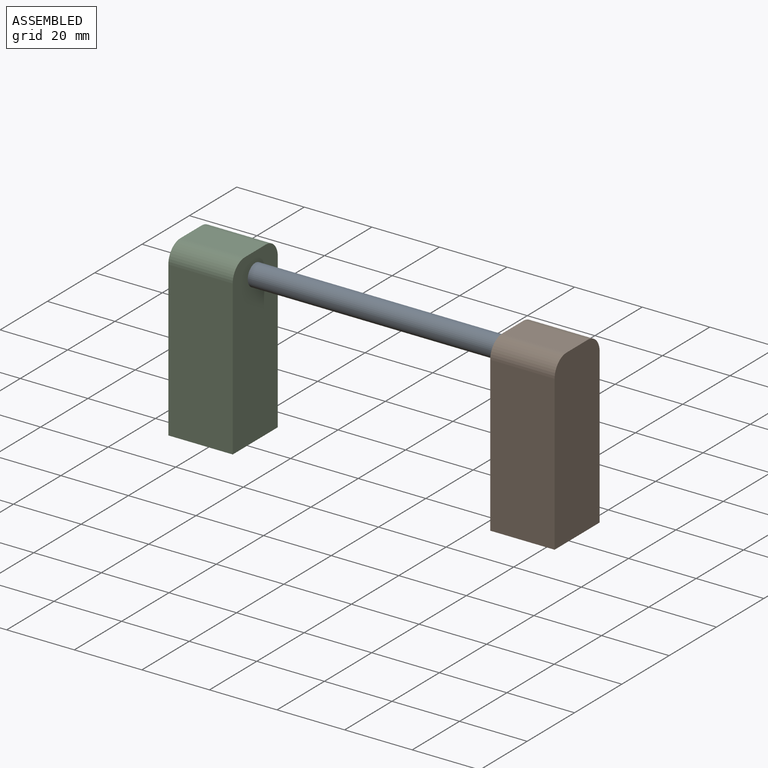
[diagram: assembled view]
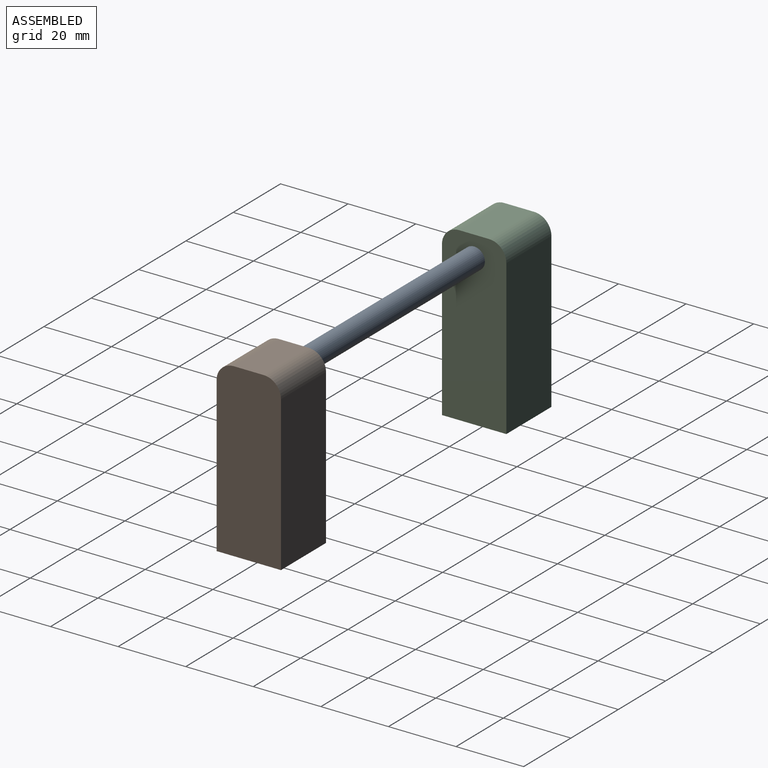
[diagram: assembled view, second angle]
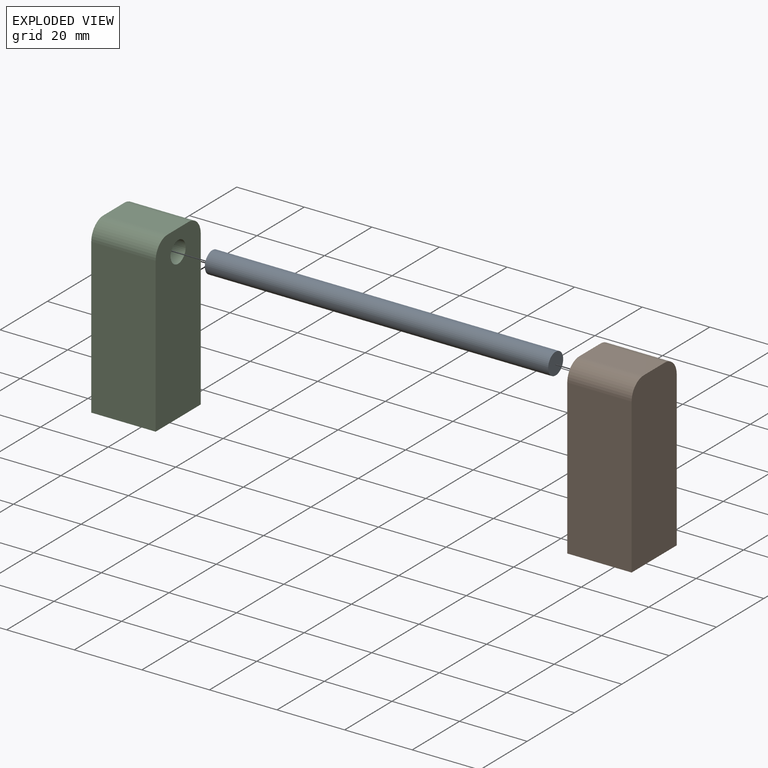
[diagram: exploded view]
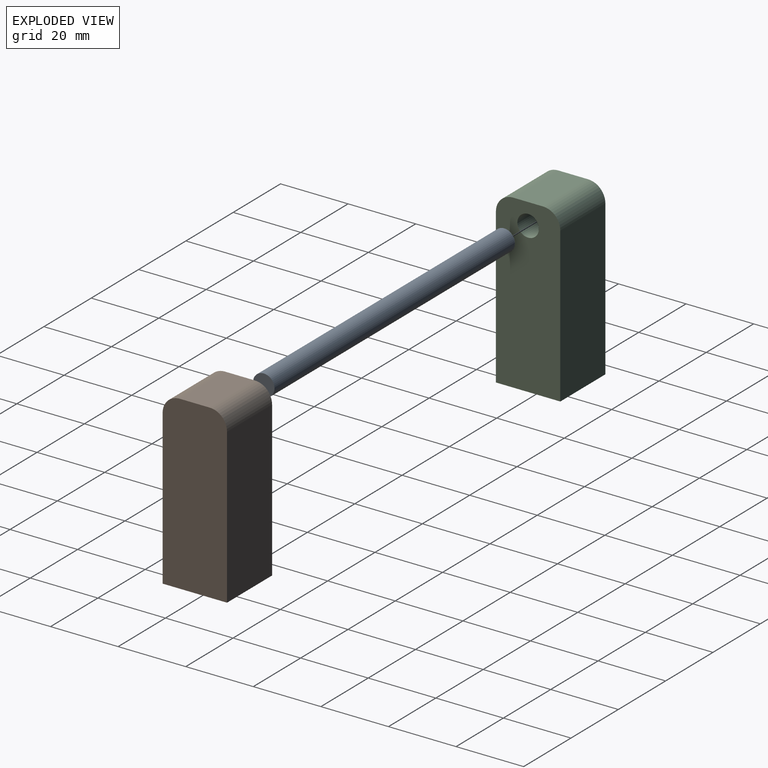
[diagram: exploded view, second angle]
ASSEMBLY  parts=3 mates=2
PART A: 3 faces, bbox 101.6x6.4x6.4 mm
  f0: cylinder r=3.17mm len=101.6mm, axis (-1,0,0), area 2026.8mm2, adj f1,f2
  f1: plane 6.35x6.35mm, normal (1,0,0), area 31.7mm2, adj f0
  f2: plane 6.35x6.35mm, normal (-1,0,0), area 31.7mm2, adj f0
PART B: 10 faces, bbox 19.1x19.1x50.8 mm
  f0: plane 45.72x19.05mm, normal (0,-1,0), area 871mm2, adj f1,f3,f5,f9
  f1: plane 50.8x19.05mm, normal (1,0,0), area 925mm2, adj f0,f2,f4,f5,f6,f8,f9
  f2: plane 45.72x19.05mm, normal (0,1,0), area 871mm2, adj f1,f3,f5,f8
  f3: plane 50.8x19.05mm, normal (-1,0,0), area 956.7mm2, adj f0,f2,f4,f5,f8,f9
  f4: plane 19.05x8.89mm, normal (0,0,1), area 169.4mm2, adj f1,f3,f8,f9
  f5: plane 19.05x19.05mm, normal (0,0,-1), area 362.9mm2, adj f0,f1,f2,f3
  f6: cylinder r=3.17mm len=12.7mm, axis (1,0,0), area 253.4mm2, adj f1,f7
  f7: plane 6.35x6.35mm, normal (1,0,0), area 31.7mm2, adj f6
  f8: cylinder r=5.08mm len=19.05mm, axis (1,0,0), area 152mm2, adj f1,f2,f3,f4
  f9: cylinder r=5.08mm len=19.05mm, axis (-1,0,0), area 152mm2, adj f0,f1,f3,f4
PART C: same geometry as B
PLACE A t=(-3.18,0,44.45)mm
PLACE B rot(axis=(0,0,1),180deg) t=(95.25,0,0)mm
PLACE C at identity
MATE fastened C.f6 <-> A.f0  axis (1,0,0) through (-3.18,0,44.45)mm
MATE fastened B.f6 <-> A.f0  axis (-1,0,0) through (98.43,0,44.45)mm
